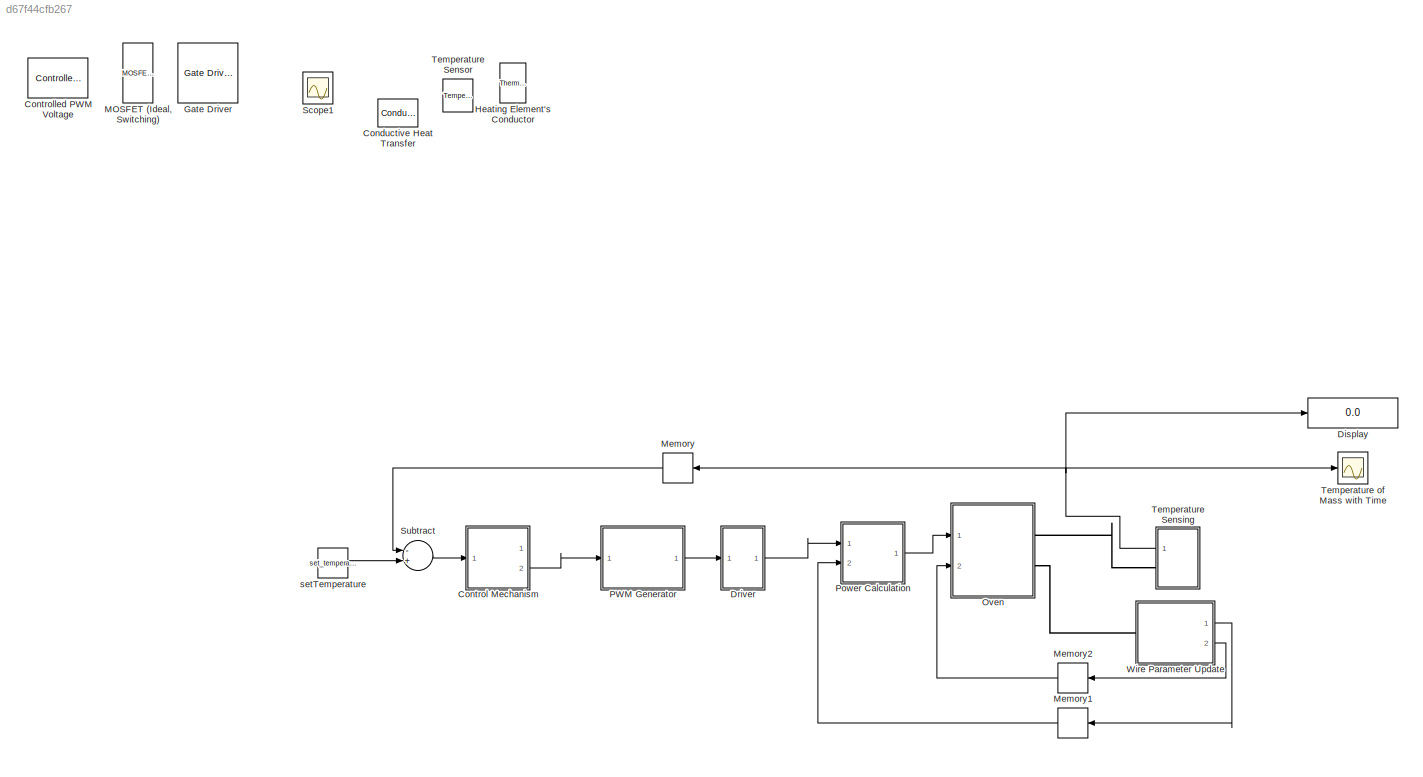
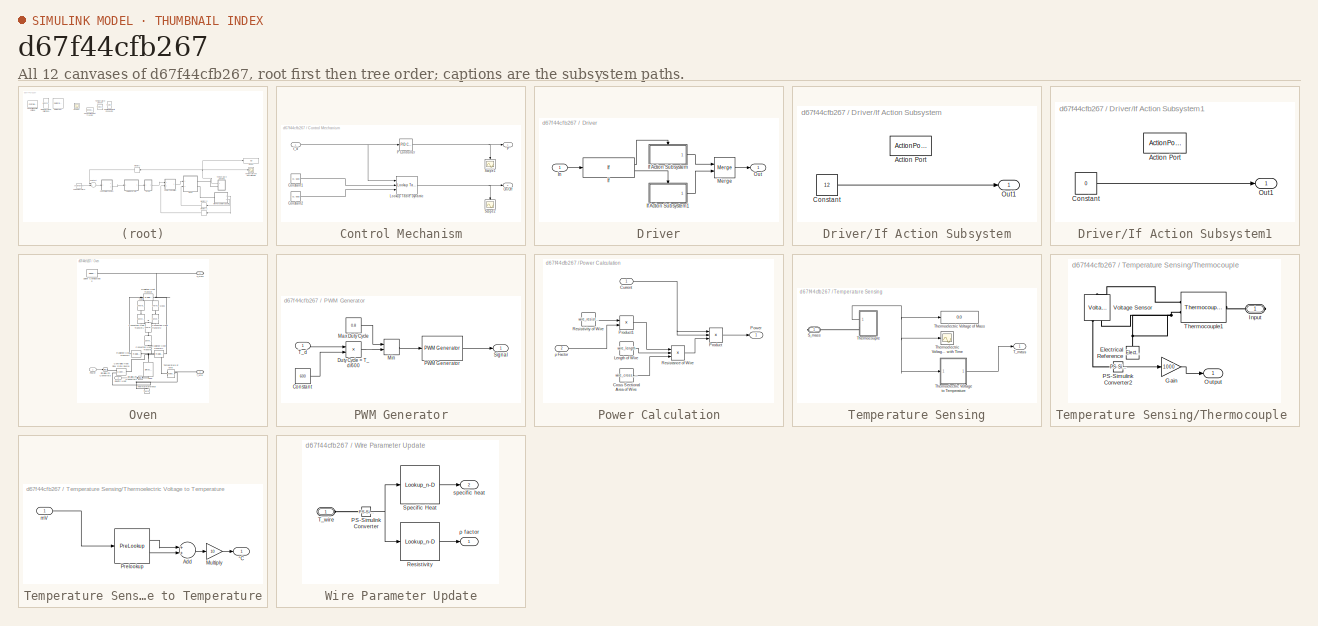
[diagram: thumbnail index - all 12 canvases of the model, root first then tree order]
MODEL slx_d67f44cfb267
KIND model
CONFIG AbsTol = auto
CONFIG EnableMultiTasking = off
CONFIG FixedStep = auto
CONFIG MaxStep = auto
CONFIG MinStep = auto
CONFIG RelTol = 1e-3
CONFIG SampleTimeConstraint = Unconstrained
CONFIG Solver = VariableStepAuto
CONFIG SolverName = VariableStepAuto
CONFIG StartTime = 0.0
CONFIG StopTime = 500
WORKSPACE source: mxarray member
WORKSPACE Stefan_Boltzmann_constant = 5.6704e-08
WORKSPACE air_density = 1.225
WORKSPACE air_heat_transfer_coefficient = 0.6
WORKSPACE air_volume_cubic_inch = 1152
WORKSPACE air_volume_cubic_meter = 0.0188778989947
WORKSPACE brick_count = 32
WORKSPACE brick_mass = 2.27
WORKSPACE emissivity_mass = 0.7
WORKSPACE mass_length = 0.1
WORKSPACE mass_mass = 1
WORKSPACE set_temperature: Simulink.Parameter (value not decoded)
WORKSPACE wire_cross_sectional_area: Simulink.Parameter (value not decoded)
WORKSPACE wire_length: Simulink.Parameter (value not decoded)
WORKSPACE wire_outer_surface_area = 0.04363
WORKSPACE wire_resistivity: Simulink.Parameter (value not decoded)
WORKSPACE wire_specific_heat: Simulink.Parameter (value not decoded)
BLOCK [Reference] Conductive Heat Transfer  REF=fl_lib/Thermal/Thermal Elements/Conductive Heat
Transfer
  Commented = on
  Ports = [0, 0, 0, 0, 0, 1, 1]
  SourceBlock = fl_lib/Thermal/Thermal Elements/Conductive Heat\nTransfer
  SourceProductBaseCode = SS
  SourceProductName = Simscape
  SourceType = Conductive Heat\nTransfer
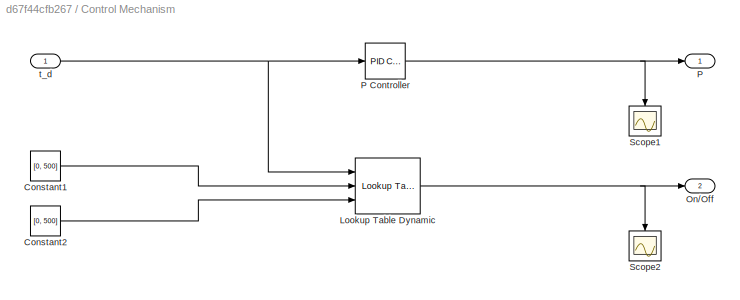
BLOCK [SubSystem] Control Mechanism
  Ports = [1, 2]
  RequestExecContextInheritance = off
BLOCK [Constant] Control Mechanism/Constant1
  Value = [0, 500]
BLOCK [Constant] Control Mechanism/Constant2
  Value = [0, 500]
BLOCK [Reference] Control Mechanism/Lookup Table Dynamic  REF=simulink/Lookup
Tables/Lookup
Table
Dynamic
  Ports = [3, 1]
  SourceBlock = simulink/Lookup\nTables/Lookup\nTable\nDynamic
  SourceProductBaseCode = SL
  SourceProductName = Simulink
  SourceType = Lookup Table Dynamic
BLOCK [Outport] Control Mechanism/On//Off 
  IconDisplay = Port number
  Port = 2
BLOCK [Outport] Control Mechanism/P
  IconDisplay = Port number
BLOCK [Reference] Control Mechanism/P Controller  REF=simulink/Continuous/PID Controller
  Ports = [1, 1]
  SourceBlock = simulink/Continuous/PID Controller
  SourceProductBaseCode = SL
  SourceProductName = Simulink
  SourceType = PID 1dof
BLOCK [Scope] Control Mechanism/Scope1
  Floating = off
  NumInputPorts = 1
  Ports = [1]
  ScopeSpecificationString = Simulink.scopes.TimeScopeBlockCfg('CurrentConfiguration', extmgr.ConfigurationSet(extmgr.Configuration('Core','General UI',true),extmgr.Configuration('Core','Source UI',true),extmgr.Configuration('Sources','WiredSimulink',true,'DataLoggingVariableName','ScopeData4'),extmgr.Configuration('Visuals','Time Domain',true,'SerializedDisplays',{struct('MinYLimReal','-342.63994','MaxYLimReal','3083.41082',...<+1472ch>
BLOCK [Scope] Control Mechanism/Scope2
  Floating = off
  NumInputPorts = 1
  Ports = [1]
  ScopeSpecificationString = Simulink.scopes.TimeScopeBlockCfg('CurrentConfiguration', extmgr.ConfigurationSet(extmgr.Configuration('Core','General UI',true),extmgr.Configuration('Core','Source UI',true),extmgr.Configuration('Sources','WiredSimulink',true,'DataLoggingVariableName','ScopeData5'),extmgr.Configuration('Visuals','Time Domain',true,'SerializedDisplays',{struct('MinYLimReal','-62.5','MaxYLimReal','562.5','YLabelRea...<+1429ch>
BLOCK [Inport] Control Mechanism/t_d
  IconDisplay = Port number
BLOCK [Reference] Controlled PWM Voltage  REF=ee_lib/Integrated Circuits/Controlled PWM
Voltage
  Commented = on
  Ports = [0, 0, 0, 0, 0, 1, 2]
  SourceBlock = ee_lib/Integrated Circuits/Controlled PWM\nVoltage
  SourceProductBaseCode = PS
  SourceProductName = Simscape Electrical
  SourceType = Controlled PWM\nVoltage
BLOCK [Display] Display
  Decimation = 2
  Ports = [1]
BLOCK [SubSystem] Driver
  Ports = [1, 1]
  RequestExecContextInheritance = off
BLOCK [If] Driver/If
  IfExpression = u1 > 0.5
  Ports = [1, 2]
BLOCK [SubSystem] Driver/If Action Subsystem
  Ports = [0, 1, 0, 0, 0, 0, 0, 1]
  RequestExecContextInheritance = off
  TreatAsAtomicUnit = on
BLOCK [ActionPort] Driver/If Action Subsystem/Action Port
  ActionPortLabel = if(u1 > 0.5)
BLOCK [Constant] Driver/If Action Subsystem/Constant
  Value = 12
BLOCK [Outport] Driver/If Action Subsystem/Out1
  IconDisplay = Port number
BLOCK [SubSystem] Driver/If Action Subsystem1
  Ports = [0, 1, 0, 0, 0, 0, 0, 1]
  RequestExecContextInheritance = off
  TreatAsAtomicUnit = on
BLOCK [ActionPort] Driver/If Action Subsystem1/Action Port
  ActionPortLabel = else
BLOCK [Constant] Driver/If Action Subsystem1/Constant
  Value = 0
BLOCK [Outport] Driver/If Action Subsystem1/Out1
  IconDisplay = Port number
BLOCK [Inport] Driver/In
  IconDisplay = Port number
BLOCK [Merge] Driver/Merge
  Ports = [2, 1]
BLOCK [Outport] Driver/Out
  IconDisplay = Port number
BLOCK [Reference] Gate Driver  REF=ee_lib/Semiconductors &
Converters/Gate Driver
  Commented = on
  Ports = [0, 0, 0, 0, 0, 1, 2]
  SourceBlock = ee_lib/Semiconductors &\nConverters/Gate Driver
  SourceProductBaseCode = PS
  SourceProductName = Simscape Electrical
  SourceType = Gate Driver
BLOCK [Reference] Heating Element's Conductor  REF=fl_lib/Thermal/Thermal Elements/Thermal Mass
  Commented = on
  Ports = [0, 0, 0, 0, 0, 1]
  SourceBlock = fl_lib/Thermal/Thermal Elements/Thermal Mass
  SourceProductBaseCode = SS
  SourceProductName = Simscape
  SourceType = Thermal Mass
BLOCK [Reference] MOSFET (Ideal, Switching)  REF=ee_lib/Semiconductors &
Converters/MOSFET
(Ideal,
Switching)
  Commented = on
  Ports = [0, 0, 0, 0, 0, 1, 2]
  SourceBlock = ee_lib/Semiconductors &\nConverters/MOSFET\n(Ideal,\nSwitching)
  SourceProductBaseCode = PS
  SourceProductName = Simscape Electrical
  SourceType = MOSFET\n(Ideal,\nSwitching)
BLOCK [Memory] Memory
  InitialCondition = set_temperature
BLOCK [Memory] Memory1
  InitialCondition = 1
BLOCK [Memory] Memory2
  InitialCondition = 0.46
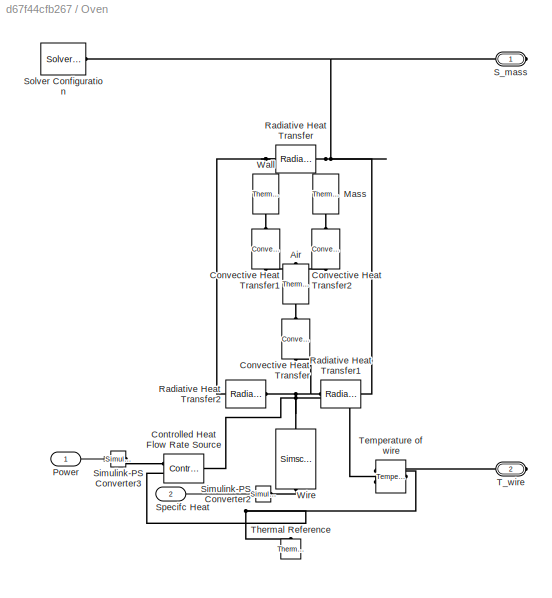
BLOCK [SubSystem] Oven
  Ports = [2, 0, 0, 0, 0, 0, 2]
  RequestExecContextInheritance = off
BLOCK [Reference] Oven/Air  REF=fl_lib/Thermal/Thermal Elements/Thermal Mass
  Ports = [0, 0, 0, 0, 0, 1]
  SourceBlock = fl_lib/Thermal/Thermal Elements/Thermal Mass
  SourceProductBaseCode = SS
  SourceProductName = Simscape
  SourceType = Thermal Mass
BLOCK [Reference] Oven/Controlled Heat Flow Rate Source  REF=fl_lib/Thermal/Thermal Sources/Controlled Heat Flow
Rate Source
  Ports = [0, 0, 0, 0, 0, 1, 2]
  SourceBlock = fl_lib/Thermal/Thermal Sources/Controlled Heat Flow\nRate Source
  SourceProductBaseCode = SS
  SourceProductName = Simscape
  SourceType = Controlled Heat Flow\nRate Source
BLOCK [Reference] Oven/Convective Heat Transfer  REF=fl_lib/Thermal/Thermal Elements/Convective Heat
Transfer
  Ports = [0, 0, 0, 0, 0, 1, 1]
  SourceBlock = fl_lib/Thermal/Thermal Elements/Convective Heat\nTransfer
  SourceProductBaseCode = SS
  SourceProductName = Simscape
  SourceType = Convective Heat\nTransfer
BLOCK [Reference] Oven/Convective Heat Transfer1  REF=fl_lib/Thermal/Thermal Elements/Convective Heat
Transfer
  Ports = [0, 0, 0, 0, 0, 1, 1]
  SourceBlock = fl_lib/Thermal/Thermal Elements/Convective Heat\nTransfer
  SourceProductBaseCode = SS
  SourceProductName = Simscape
  SourceType = Convective Heat\nTransfer
BLOCK [Reference] Oven/Convective Heat Transfer2  REF=fl_lib/Thermal/Thermal Elements/Convective Heat
Transfer
  Ports = [0, 0, 0, 0, 0, 1, 1]
  SourceBlock = fl_lib/Thermal/Thermal Elements/Convective Heat\nTransfer
  SourceProductBaseCode = SS
  SourceProductName = Simscape
  SourceType = Convective Heat\nTransfer
BLOCK [Reference] Oven/Mass  REF=fl_lib/Thermal/Thermal Elements/Thermal Mass
  Ports = [0, 0, 0, 0, 0, 1]
  SourceBlock = fl_lib/Thermal/Thermal Elements/Thermal Mass
  SourceProductBaseCode = SS
  SourceProductName = Simscape
  SourceType = Thermal Mass
BLOCK [Inport] Oven/Power
  IconDisplay = Port number
BLOCK [Reference] Oven/Radiative Heat Transfer  REF=fl_lib/Thermal/Thermal Elements/Radiative Heat
Transfer
  Ports = [0, 0, 0, 0, 0, 1, 1]
  SourceBlock = fl_lib/Thermal/Thermal Elements/Radiative Heat\nTransfer
  SourceProductBaseCode = SS
  SourceProductName = Simscape
  SourceType = Radiative Heat\nTransfer
BLOCK [Reference] Oven/Radiative Heat Transfer1  REF=fl_lib/Thermal/Thermal Elements/Radiative Heat
Transfer
  Ports = [0, 0, 0, 0, 0, 1, 1]
  SourceBlock = fl_lib/Thermal/Thermal Elements/Radiative Heat\nTransfer
  SourceProductBaseCode = SS
  SourceProductName = Simscape
  SourceType = Radiative Heat\nTransfer
BLOCK [Reference] Oven/Radiative Heat Transfer2  REF=fl_lib/Thermal/Thermal Elements/Radiative Heat
Transfer
  Ports = [0, 0, 0, 0, 0, 1, 1]
  SourceBlock = fl_lib/Thermal/Thermal Elements/Radiative Heat\nTransfer
  SourceProductBaseCode = SS
  SourceProductName = Simscape
  SourceType = Radiative Heat\nTransfer
BLOCK [PMIOPort] Oven/S_mass
  Side = Right
BLOCK [Reference] Oven/Simulink-PS Converter2  REF=nesl_utility/Simulink-PS
Converter
  Ports = [1, 0, 0, 0, 0, 0, 1]
  SourceBlock = nesl_utility/Simulink-PS\nConverter
  SourceProductBaseCode = SS
  SourceProductName = Simscape
  SourceType = Simulink-PS\nConverter
BLOCK [Reference] Oven/Simulink-PS Converter3  REF=nesl_utility/Simulink-PS
Converter
  Ports = [1, 0, 0, 0, 0, 0, 1]
  SourceBlock = nesl_utility/Simulink-PS\nConverter
  SourceProductBaseCode = SS
  SourceProductName = Simscape
  SourceType = Simulink-PS\nConverter
BLOCK [Reference] Oven/Solver Configuration  REF=nesl_utility/Solver
Configuration
  Ports = [0, 0, 0, 0, 0, 0, 1]
  SourceBlock = nesl_utility/Solver\nConfiguration
  SourceProductBaseCode = SS
  SourceProductName = Simscape
  SourceType = Solver\nConfiguration
BLOCK [Inport] Oven/Specifc Heat
  IconDisplay = Port number
  Port = 2
BLOCK [PMIOPort] Oven/T_wire
  Port = 2
  Side = Right
BLOCK [Reference] Oven/Temperature of wire  REF=fl_lib/Thermal/Thermal Sensors/Temperature Sensor
  Ports = [0, 0, 0, 0, 0, 1, 2]
  SourceBlock = fl_lib/Thermal/Thermal Sensors/Temperature Sensor
  SourceProductBaseCode = SS
  SourceProductName = Simscape
  SourceType = Temperature Sensor
BLOCK [Reference] Oven/Thermal Reference  REF=fl_lib/Thermal/Thermal Elements/Thermal Reference
  Ports = [0, 0, 0, 0, 0, 1]
  SourceBlock = fl_lib/Thermal/Thermal Elements/Thermal Reference
  SourceProductBaseCode = SS
  SourceProductName = Simscape
  SourceType = Thermal Reference
BLOCK [Reference] Oven/Wall  REF=fl_lib/Thermal/Thermal Elements/Thermal Mass
  Ports = [0, 0, 0, 0, 0, 1]
  SourceBlock = fl_lib/Thermal/Thermal Elements/Thermal Mass
  SourceProductBaseCode = SS
  SourceProductName = Simscape
  SourceType = Thermal Mass
BLOCK [SimscapeComponentBlock] Oven/Wire
  ClassName = mass
  ComponentPath = mass
  ComponentVariantNames = mass
  ComponentVariants = mass
  CopyFcn = simscape.engine.sli.internal.componentblockcallback(gcbh,'COPY')
  InternalSimscapePortConfiguration = {"Bottom":[],"Left":[{"id":"M","label":"","type":"foundation.thermal.thermal"}],"Right":[{"id":"sp_heat","label":"Specific heat","type":"input"}],"Top":[]}
  MaskType = Thermal Mass
  Ports = [0, 0, 0, 0, 0, 1, 1]
  PreCopyFcn = simscape.engine.sli.internal.componentblockcallback(gcbh,'PRECOPY')
  PreDeleteFcn = simscape.engine.sli.internal.componentblockcallback(gcbh,'PREDELETE')
  Q = 0
  Q_nominal_specify = off
  Q_nominal_unit = W
  Q_nominal_value = 1
  Q_priority = None
  Q_specify = off
  Q_unit = W
  SchemaVersion = 1
  SourceFile = mass
  T = 300
  T_nominal_specify = off
  T_nominal_unit = K
  T_nominal_value = 1
  T_priority = High
  T_specify = off
  T_unit = K
  mass = 0.06326
  mass_conf = compiletime
  mass_unit = kg
BLOCK [SubSystem] PWM Generator
  Ports = [1, 1]
  RequestExecContextInheritance = off
BLOCK [Constant] PWM Generator/Constant
  Value = 600
BLOCK [Product] PWM Generator/Duty Cycle = T_d//600
  InputSameDT = off
  Inputs = */
  OutDataTypeStr = Inherit: Inherit via internal rule
  Ports = [2, 1]
  RndMeth = Floor
  SaturateOnIntegerOverflow = off
BLOCK [Constant] PWM Generator/Max Duty Cycle
  Value = 0.8
BLOCK [MinMax] PWM Generator/Min
  InputSameDT = off
  Inputs = 2
  Ports = [2, 1]
  SaturateOnIntegerOverflow = off
BLOCK [Reference] PWM Generator/PWM Generator  REF=eePwmGenerator/PWM Generator
  Ports = [1, 1]
  SourceBlock = eePwmGenerator/PWM Generator
  SourceProductBaseCode = PS
  SourceProductName = Simscape Electrical
  SourceType = PWM Generator
BLOCK [Outport] PWM Generator/Signal
  IconDisplay = Port number
BLOCK [Inport] PWM Generator/T_d
  IconDisplay = Port number
BLOCK [SubSystem] Power Calculation
  Ports = [2, 1]
  RequestExecContextInheritance = off
BLOCK [Constant] Power Calculation/Cross Sectional Area of Wire
  Value = wire_cross_sectional_area
BLOCK [Inport] Power Calculation/Current
  IconDisplay = Port number
BLOCK [Constant] Power Calculation/Length of Wire
  Value = wire_length
BLOCK [Outport] Power Calculation/Power
  IconDisplay = Port number
BLOCK [Product] Power Calculation/Product
  InputSameDT = off
  Inputs = 3
  OutDataTypeStr = Inherit: Inherit via internal rule
  Ports = [3, 1]
  RndMeth = Floor
  SaturateOnIntegerOverflow = off
BLOCK [Product] Power Calculation/Product1
  InputSameDT = off
  OutDataTypeStr = Inherit: Inherit via internal rule
  Ports = [2, 1]
  RndMeth = Floor
  SaturateOnIntegerOverflow = off
BLOCK [Product] Power Calculation/Resistance of Wire
  InputSameDT = off
  Inputs = **/
  OutDataTypeStr = Inherit: Inherit via internal rule
  Ports = [3, 1]
  RndMeth = Floor
  SaturateOnIntegerOverflow = off
BLOCK [Constant] Power Calculation/Resistivity of Wire
  Value = wire_resistivity
BLOCK [Inport] Power Calculation/ρ Factor
  IconDisplay = Port number
  Port = 2
BLOCK [Scope] Scope1
  Commented = on
  Floating = off
  NumInputPorts = 1
  Ports = [1]
  ScopeSpecificationString = Simulink.scopes.TimeScopeBlockCfg('CurrentConfiguration', extmgr.ConfigurationSet(extmgr.Configuration('Core','General UI',true),extmgr.Configuration('Core','Source UI',true),extmgr.Configuration('Sources','WiredSimulink',true,'DataLoggingVariableName','ScopeData2'),extmgr.Configuration('Visuals','Time Domain',true),extmgr.Configuration('Tools','Plot Navigation',true),extmgr.Configuration('Tools',...<+40ch>
BLOCK [Sum] Subtract
  InputSameDT = off
  Inputs = -+
  OutDataTypeStr = Inherit: Inherit via internal rule
  Ports = [2, 1]
  SaturateOnIntegerOverflow = off
BLOCK [SubSystem] Temperature Sensing
  Ports = [0, 1, 0, 0, 0, 0, 1]
  RequestExecContextInheritance = off
BLOCK [PMIOPort] Temperature Sensing/S_mass
  Side = Right
BLOCK [Outport] Temperature Sensing/T_mass
  IconDisplay = Port number
BLOCK [SubSystem] Temperature Sensing/Thermocouple 
  Ports = [0, 1, 0, 0, 0, 0, 1]
  RequestExecContextInheritance = off
BLOCK [Reference] Temperature Sensing/Thermocouple /Electrical Reference  REF=fl_lib/Electrical/Electrical Elements/Electrical Reference
  Ports = [0, 0, 0, 0, 0, 1]
  SourceBlock = fl_lib/Electrical/Electrical Elements/Electrical Reference
  SourceProductBaseCode = SS
  SourceProductName = Simscape
  SourceType = Electrical Reference
BLOCK [Gain] Temperature Sensing/Thermocouple /Gain
  Gain = 1000
  OutDataTypeStr = Inherit: Inherit via internal rule
  ParamDataTypeStr = Inherit: Inherit via internal rule
  SaturateOnIntegerOverflow = off
BLOCK [PMIOPort] Temperature Sensing/Thermocouple /Input 
  Side = Right
BLOCK [Outport] Temperature Sensing/Thermocouple /Output
  IconDisplay = Port number
BLOCK [Reference] Temperature Sensing/Thermocouple /PS-Simulink Converter2  REF=nesl_utility/PS-Simulink
Converter
  Ports = [0, 1, 0, 0, 0, 1]
  SourceBlock = nesl_utility/PS-Simulink\nConverter
  SourceProductBaseCode = SS
  SourceProductName = Simscape
  SourceType = PS-Simulink\nConverter
BLOCK [Reference] Temperature Sensing/Thermocouple /Thermocouple1  REF=ee_lib/Sensors &
Transducers/Thermocouple
  Ports = [0, 0, 0, 0, 0, 2, 1]
  SourceBlock = ee_lib/Sensors &\nTransducers/Thermocouple
  SourceProductBaseCode = PS
  SourceProductName = Simscape Electrical
  SourceType = Thermocouple
BLOCK [Reference] Temperature Sensing/Thermocouple /Voltage Sensor  REF=fl_lib/Electrical/Electrical Sensors/Voltage Sensor
  Ports = [0, 0, 0, 0, 0, 1, 2]
  SourceBlock = fl_lib/Electrical/Electrical Sensors/Voltage Sensor
  SourceProductBaseCode = SS
  SourceProductName = Simscape
  SourceType = Voltage Sensor
BLOCK [Display] Temperature Sensing/Thermoelectric Voltage of Mass
  Decimation = 1
  Ports = [1]
BLOCK [Scope] Temperature Sensing/Thermoelectric Voltage of Mass with Time
  Floating = off
  NumInputPorts = 1
  Ports = [1]
  ScopeSpecificationString = Simulink.scopes.TimeScopeBlockCfg('CurrentConfiguration', extmgr.ConfigurationSet(extmgr.Configuration('Core','General UI',true),extmgr.Configuration('Core','Source UI',true),extmgr.Configuration('Sources','WiredSimulink',true,'DataLoggingVariableName','ScopeData2'),extmgr.Configuration('Visuals','Time Domain',true,'SerializedDisplays',{struct('MinYLimReal','0.1078','MaxYLimReal','9.40717','YLabel...<+1366ch>
BLOCK [SubSystem] Temperature Sensing/Thermoelectric Voltage to Temperature
  Ports = [1, 1]
  RequestExecContextInheritance = off
BLOCK [Sum] Temperature Sensing/Thermoelectric Voltage to Temperature/Add
  InputSameDT = off
  OutDataTypeStr = Inherit: Inherit via internal rule
  Ports = [2, 1]
  SaturateOnIntegerOverflow = off
BLOCK [Gain] Temperature Sensing/Thermoelectric Voltage to Temperature/Multiply
  Gain = 10
  OutDataTypeStr = Inherit: Inherit via internal rule
  ParamDataTypeStr = Inherit: Inherit via internal rule
  SaturateOnIntegerOverflow = off
BLOCK [PreLookup] Temperature Sensing/Thermoelectric Voltage to Temperature/Prelookup
  BreakpointsData = [0.0, 0.397, 0.798, 1.203, 1.612, 2.023, 2.436, 2.851, 3.267, 3.682, 4.096, 4.509, 4.92, 5.328, 5.735, 6.138, 6.54, 6.941, 7.34, 7.739, 8.138, 8.539, 8.94, 9.343, 9.747, 10.153, 10.561, 10.971, 11.382, 11.795, 12.209, 12.624, 13.04, 13.457, 13.874, 14.293, 14.713, 15.133, 15.554, 15.975, 16.397, 16.82, 17.243, 17.667, 18.091, 18.516, 18.941, 19.366, 19.792, 20.218, 20.644, 21.071, 21.497, 21.924, ...<+661ch>
  DiagnosticForOutOfRangeInput = Warning
  ExtrapMethod = Linear
  InputPortMap = u0
  Ports = [1, 2]
BLOCK [Inport] Temperature Sensing/Thermoelectric Voltage to Temperature/mV
  IconDisplay = Port number
BLOCK [Outport] Temperature Sensing/Thermoelectric Voltage to Temperature/°C
  IconDisplay = Port number
BLOCK [Reference] Temperature Sensor  REF=fl_lib/Thermal/Thermal Sensors/Temperature Sensor
  Commented = on
  Ports = [0, 0, 0, 0, 0, 1, 2]
  SourceBlock = fl_lib/Thermal/Thermal Sensors/Temperature Sensor
  SourceProductBaseCode = SS
  SourceProductName = Simscape
  SourceType = Temperature Sensor
BLOCK [Scope] Temperature of Mass with Time
  Floating = off
  NumInputPorts = 1
  Ports = [1]
  ScopeSpecificationString = Simulink.scopes.TimeScopeBlockCfg('CurrentConfiguration', extmgr.ConfigurationSet(extmgr.Configuration('Core','General UI',true),extmgr.Configuration('Core','Source UI',true),extmgr.Configuration('Sources','WiredSimulink',true,'DataLoggingVariableName','ScopeData1'),extmgr.Configuration('Visuals','Time Domain',true,'SerializedDisplays',{struct('MinYLimReal','16.65722','MaxYLimReal','670.60494','YL...<+1489ch>
BLOCK [SubSystem] Wire Parameter Update
  Ports = [0, 2, 0, 0, 0, 1]
  RequestExecContextInheritance = off
BLOCK [Reference] Wire Parameter Update/PS-Simulink Converter  REF=nesl_utility/PS-Simulink
Converter
  Ports = [0, 1, 0, 0, 0, 1]
  SourceBlock = nesl_utility/PS-Simulink\nConverter
  SourceProductBaseCode = SS
  SourceProductName = Simscape
  SourceType = PS-Simulink\nConverter
BLOCK [Lookup_n-D] Wire Parameter Update/Resistivity
  BreakpointsForDimension1 = [0,100,200,300,400,500,600,700,800,900,1000,1100,1200,1300]
  InternalRulePriority = Speed
  InterpMethod = Linear Lagrange
  NumberOfTableDimensions = 1
  Ports = [1, 1]
  RndMeth = Simplest
  Table = [1.00,1.00,1.01,1.01,1.02,1.03,1.04,1.05,1.06,1.07,1.07,1.07,1.08,1.08]
BLOCK [Lookup_n-D] Wire Parameter Update/Specific Heat
  BreakpointsForDimension1 = [20,200,400,600,800,1000,1200]
  InternalRulePriority = Speed
  InterpMethod = Linear Lagrange
  NumberOfTableDimensions = 1
  Ports = [1, 1]
  RndMeth = Simplest
  Table = [0.46,0.56,0.63,0.75,0.71,0.72,0.74]
BLOCK [PMIOPort] Wire Parameter Update/T_wire
  Side = Left
BLOCK [Outport] Wire Parameter Update/specific heat
  IconDisplay = Port number
  Port = 2
BLOCK [Outport] Wire Parameter Update/ρ factor
  IconDisplay = Port number
BLOCK [Constant] setTemperature
  Value = set_temperature
LINE Control Mechanism/Constant1:1 -> Control Mechanism/Lookup Table Dynamic:2
LINE Control Mechanism/Constant2:1 -> Control Mechanism/Lookup Table Dynamic:3
NET Control Mechanism/Lookup Table Dynamic:1 -> Control Mechanism/On//Off :1, Control Mechanism/Scope2:1
NET Control Mechanism/P Controller:1 -> Control Mechanism/P:1, Control Mechanism/Scope1:1
NET Control Mechanism/t_d:1 -> Control Mechanism/Lookup Table Dynamic:1, Control Mechanism/P Controller:1
LINE Control Mechanism:2 -> PWM Generator:1
LINE Driver/If Action Subsystem/Constant:1 -> Driver/If Action Subsystem/Out1:1
LINE Driver/If Action Subsystem1/Constant:1 -> Driver/If Action Subsystem1/Out1:1
LINE Driver/If Action Subsystem1:1 -> Driver/Merge:2
LINE Driver/If Action Subsystem:1 -> Driver/Merge:1
LINE Driver/If:1 -> Driver/If Action Subsystem:ifaction
LINE Driver/If:2 -> Driver/If Action Subsystem1:ifaction
LINE Driver/In:1 -> Driver/If:1
LINE Driver/Merge:1 -> Driver/Out:1
LINE Driver:1 -> Power Calculation:1
LINE Memory1:1 -> Power Calculation:2
LINE Memory2:1 -> Oven:2
LINE Memory:1 -> Subtract:1
LINE Oven/Power:1 -> Oven/Simulink-PS Converter3:1
LINE Oven/Specifc Heat:1 -> Oven/Simulink-PS Converter2:1
LINE PWM Generator/Constant:1 -> PWM Generator/Duty Cycle = T_d//600:2
LINE PWM Generator/Duty Cycle = T_d//600:1 -> PWM Generator/Min:2
LINE PWM Generator/Max Duty Cycle:1 -> PWM Generator/Min:1
LINE PWM Generator/Min:1 -> PWM Generator/PWM Generator:1
LINE PWM Generator/PWM Generator:1 -> PWM Generator/Signal:1
LINE PWM Generator/T_d:1 -> PWM Generator/Duty Cycle = T_d//600:1
LINE PWM Generator:1 -> Driver:1
LINE Power Calculation/Cross Sectional Area of Wire:1 -> Power Calculation/Resistance of Wire:3
NET Power Calculation/Current:1 -> Power Calculation/Product:1, Power Calculation/Product:2
LINE Power Calculation/Length of Wire:1 -> Power Calculation/Resistance of Wire:2
LINE Power Calculation/Product1:1 -> Power Calculation/Resistance of Wire:1
LINE Power Calculation/Product:1 -> Power Calculation/Power:1
LINE Power Calculation/Resistance of Wire:1 -> Power Calculation/Product:3
LINE Power Calculation/Resistivity of Wire:1 -> Power Calculation/Product1:1
LINE Power Calculation/ρ Factor:1 -> Power Calculation/Product1:2
LINE Power Calculation:1 -> Oven:1
LINE Subtract:1 -> Control Mechanism:1
LINE Temperature Sensing/Thermocouple /Gain:1 -> Temperature Sensing/Thermocouple /Output:1
LINE Temperature Sensing/Thermocouple /PS-Simulink Converter2:1 -> Temperature Sensing/Thermocouple /Gain:1
NET Temperature Sensing/Thermocouple :1 -> Temperature Sensing/Thermoelectric Voltage of Mass with Time:1, Temperature Sensing/Thermoelectric Voltage of Mass:1, Temperature Sensing/Thermoelectric Voltage to Temperature:1
LINE Temperature Sensing/Thermoelectric Voltage to Temperature/Add:1 -> Temperature Sensing/Thermoelectric Voltage to Temperature/Multiply:1
LINE Temperature Sensing/Thermoelectric Voltage to Temperature/Multiply:1 -> Temperature Sensing/Thermoelectric Voltage to Temperature/°C:1
LINE Temperature Sensing/Thermoelectric Voltage to Temperature/Prelookup:1 -> Temperature Sensing/Thermoelectric Voltage to Temperature/Add:1
LINE Temperature Sensing/Thermoelectric Voltage to Temperature/Prelookup:2 -> Temperature Sensing/Thermoelectric Voltage to Temperature/Add:2
LINE Temperature Sensing/Thermoelectric Voltage to Temperature/mV:1 -> Temperature Sensing/Thermoelectric Voltage to Temperature/Prelookup:1
LINE Temperature Sensing/Thermoelectric Voltage to Temperature:1 -> Temperature Sensing/T_mass:1
NET Temperature Sensing:1 -> Display:1, Memory:1, Temperature of Mass with Time:1
NET Wire Parameter Update/PS-Simulink Converter:1 -> Wire Parameter Update/Resistivity:1, Wire Parameter Update/Specific Heat:1
LINE Wire Parameter Update/Resistivity:1 -> Wire Parameter Update/ρ factor:1
LINE Wire Parameter Update/Specific Heat:1 -> Wire Parameter Update/specific heat:1
LINE Wire Parameter Update:1 -> Memory1:1
LINE Wire Parameter Update:2 -> Memory2:1
LINE setTemperature:1 -> Subtract:2
PNET net1: Oven/Air:LConn1 -- Oven/Convective Heat Transfer1:LConn1 -- Oven/Convective Heat Transfer2:LConn1 -- Oven/Convective Heat Transfer:RConn1
PNET net2: Oven/Controlled Heat Flow Rate Source:LConn1 -- Oven/Convective Heat Transfer:LConn1 -- Oven/Radiative Heat Transfer1:LConn1 -- Oven/Radiative Heat Transfer2:LConn1 -- Oven/Temperature of wire:LConn1 -- Oven/Wire:LConn1
PLINE Oven/Controlled Heat Flow Rate Source:RConn1 -- Oven/Simulink-PS Converter3:RConn1
PNET net3: Oven/Controlled Heat Flow Rate Source:RConn2 -- Oven/Temperature of wire:RConn1 -- Oven/Thermal Reference:LConn1
PNET net4: Oven/Convective Heat Transfer1:RConn1 -- Oven/Radiative Heat Transfer2:RConn1 -- Oven/Radiative Heat Transfer:LConn1 -- Oven/Wall:LConn1
PNET net5: Oven/Convective Heat Transfer2:RConn1 -- Oven/Mass:LConn1 -- Oven/Radiative Heat Transfer1:RConn1 -- Oven/Radiative Heat Transfer:RConn1 -- Oven/S_mass:RConn1 -- Oven/Solver Configuration:RConn1
PLINE Oven/Simulink-PS Converter2:RConn1 -- Oven/Wire:RConn1
PLINE Oven/T_wire:RConn1 -- Oven/Temperature of wire:RConn2
PLINE Oven:RConn1 -- Temperature Sensing:RConn1
PLINE Oven:RConn2 -- Wire Parameter Update:LConn1
PLINE Temperature Sensing/S_mass:RConn1 -- Temperature Sensing/Thermocouple :RConn1
PNET net6: Temperature Sensing/Thermocouple /Electrical Reference:LConn1 -- Temperature Sensing/Thermocouple /Thermocouple1:LConn2 -- Temperature Sensing/Thermocouple /Voltage Sensor:RConn2
PLINE Temperature Sensing/Thermocouple /Input :RConn1 -- Temperature Sensing/Thermocouple /Thermocouple1:RConn1
PLINE Temperature Sensing/Thermocouple /PS-Simulink Converter2:LConn1 -- Temperature Sensing/Thermocouple /Voltage Sensor:RConn1
PLINE Temperature Sensing/Thermocouple /Thermocouple1:LConn1 -- Temperature Sensing/Thermocouple /Voltage Sensor:LConn1
PLINE Wire Parameter Update/PS-Simulink Converter:LConn1 -- Wire Parameter Update/T_wire:RConn1
note: NET lines group one-source signal fan-out (src -> all destinations, sorted); 1:1 wires keep LINE; PNET lines group multi-terminal physical nets as a canonical sorted terminal list (undirected conserving connections); 2-terminal nets keep the pairwise PLINE form
